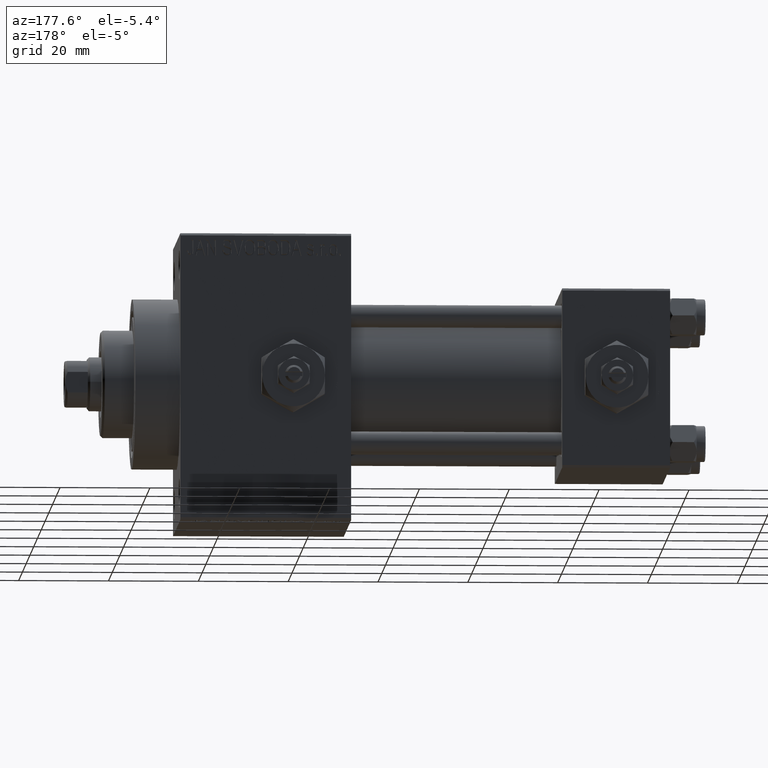
[diagram: clean part render]
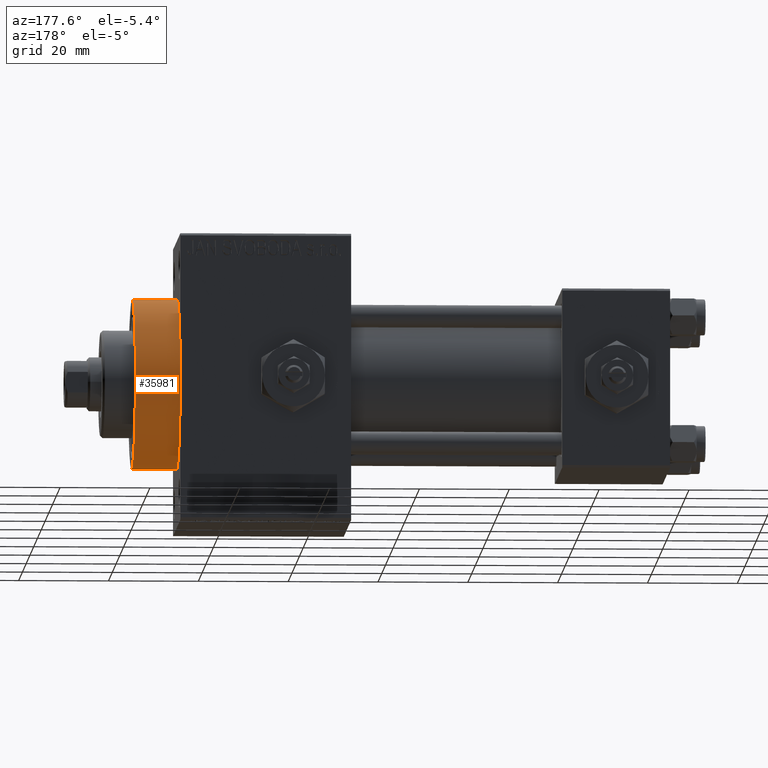
[diagram: same view with one face highlighted and labeled with its STEP entity id]
A machine part, auxiliary view. The second image highlights one B-rep face of the part: STEP entity #35981.
In plain terms, the highlighted cylindrical surface (partial cylindrical patch) has radius 19 mm, axis along (-1, -0, -0).
Its self-contained STEP definition (entity closure, byte-faithful):
#1360 = CARTESIAN_POINT ( 'NONE',  ( 109.0000000000000142, 0.000000000000000000, 19.00000000000000000 ) ) ;
#3046 = ORIENTED_EDGE ( 'NONE', *, *, #48224, .F. ) ;
#3284 = VERTEX_POINT ( 'NONE', #40116 ) ;
#7646 = DIRECTION ( 'NONE',  ( -1.000000000000000000, -0.000000000000000000, -0.000000000000000000 ) ) ;
#8490 = EDGE_LOOP ( 'NONE', ( #27806, #14326, #39920, #3046 ) ) ;
#8957 = CYLINDRICAL_SURFACE ( 'NONE', #34928, 19.00000000000000000 ) ;
#13268 = CARTESIAN_POINT ( 'NONE',  ( 119.0000000000000142, 0.000000000000000000, 0.000000000000000000 ) ) ;
#13444 = VECTOR ( 'NONE', #23845, 1000.000000000000000 ) ;
#13515 = DIRECTION ( 'NONE',  ( 0.000000000000000000, 0.000000000000000000, -1.000000000000000000 ) ) ;
#14326 = ORIENTED_EDGE ( 'NONE', *, *, #38837, .T. ) ;
#18146 = DIRECTION ( 'NONE',  ( 1.000000000000000000, 0.000000000000000000, 0.000000000000000000 ) ) ;
#21177 = CIRCLE ( 'NONE', #33921, 19.00000000000000000 ) ;
#22362 = CIRCLE ( 'NONE', #31915, 19.00000000000000000 ) ;
#23845 = DIRECTION ( 'NONE',  ( -1.000000000000000000, -0.000000000000000000, -0.000000000000000000 ) ) ;
#24985 = VERTEX_POINT ( 'NONE', #44523 ) ;
#26183 = EDGE_CURVE ( 'NONE', #24985, #46506, #21177, .T. ) ;
#26581 = LINE ( 'NONE', #48778, #48579 ) ;
#27806 = ORIENTED_EDGE ( 'NONE', *, *, #40122, .F. ) ;
#27879 = FACE_OUTER_BOUND ( 'NONE', #8490, .T. ) ;
#28446 = DIRECTION ( 'NONE',  ( 1.000000000000000000, 0.000000000000000000, 0.000000000000000000 ) ) ;
#31915 = AXIS2_PLACEMENT_3D ( 'NONE', #13268, #28446, #13515 ) ;
#33921 = AXIS2_PLACEMENT_3D ( 'NONE', #38293, #18146, #49271 ) ;
#34928 = AXIS2_PLACEMENT_3D ( 'NONE', #39093, #42352, #39332 ) ;
#35019 = CARTESIAN_POINT ( 'NONE',  ( 119.0000000000000142, 0.000000000000000000, 19.00000000000000000 ) ) ;
#35981 = ADVANCED_FACE ( 'NONE', ( #27879 ), #8957, .T. ) ;
#37559 = LINE ( 'NONE', #43036, #13444 ) ;
#38293 = CARTESIAN_POINT ( 'NONE',  ( 109.0000000000000142, 0.000000000000000000, 0.000000000000000000 ) ) ;
#38837 = EDGE_CURVE ( 'NONE', #3284, #24985, #26581, .T. ) ;
#39093 = CARTESIAN_POINT ( 'NONE',  ( 119.0000000000000142, 0.000000000000000000, 0.000000000000000000 ) ) ;
#39332 = DIRECTION ( 'NONE',  ( 0.000000000000000000, 0.000000000000000000, 1.000000000000000000 ) ) ;
#39920 = ORIENTED_EDGE ( 'NONE', *, *, #26183, .T. ) ;
#40116 = CARTESIAN_POINT ( 'NONE',  ( 119.0000000000000142, 2.326828918379970970E-15, -19.00000000000000000 ) ) ;
#40122 = EDGE_CURVE ( 'NONE', #3284, #47289, #22362, .T. ) ;
#42352 = DIRECTION ( 'NONE',  ( -1.000000000000000000, -0.000000000000000000, -0.000000000000000000 ) ) ;
#43036 = CARTESIAN_POINT ( 'NONE',  ( 119.0000000000000142, 0.000000000000000000, 19.00000000000000000 ) ) ;
#44523 = CARTESIAN_POINT ( 'NONE',  ( 109.0000000000000142, 2.326828918379970970E-15, -19.00000000000000000 ) ) ;
#46506 = VERTEX_POINT ( 'NONE', #1360 ) ;
#47289 = VERTEX_POINT ( 'NONE', #35019 ) ;
#48224 = EDGE_CURVE ( 'NONE', #47289, #46506, #37559, .T. ) ;
#48579 = VECTOR ( 'NONE', #7646, 1000.000000000000000 ) ;
#48778 = CARTESIAN_POINT ( 'NONE',  ( 119.0000000000000142, 2.326828918379970970E-15, -19.00000000000000000 ) ) ;
#49271 = DIRECTION ( 'NONE',  ( 0.000000000000000000, 0.000000000000000000, -1.000000000000000000 ) ) ;